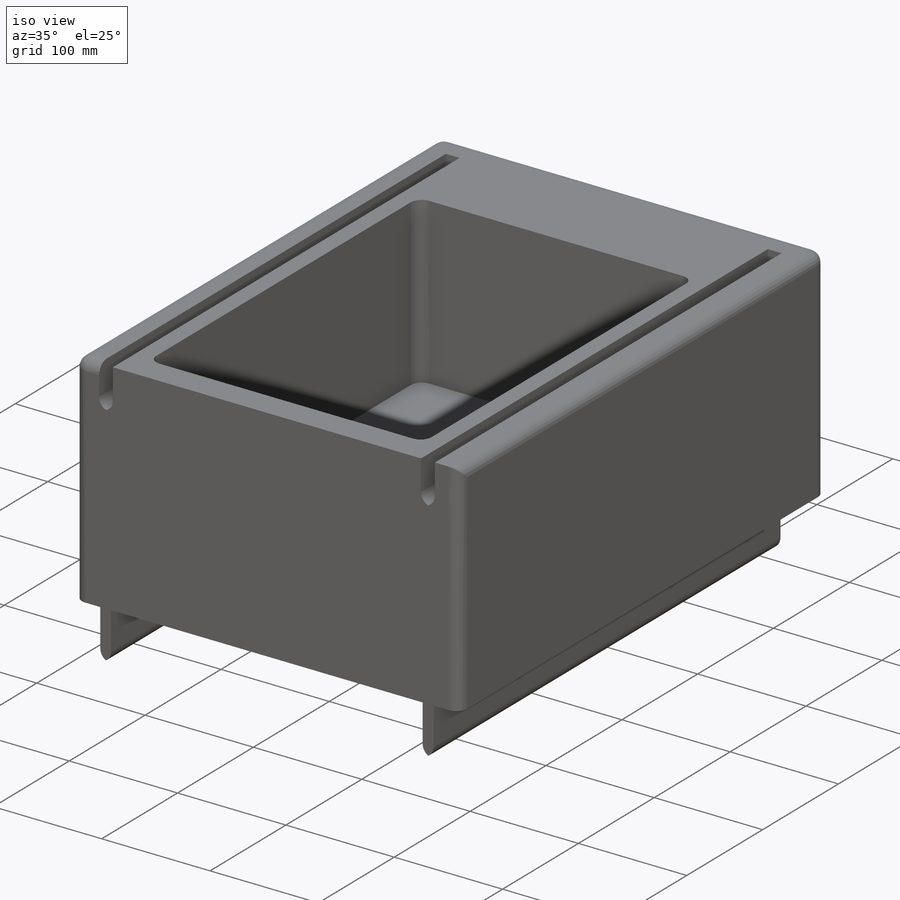
[diagram: iso view]
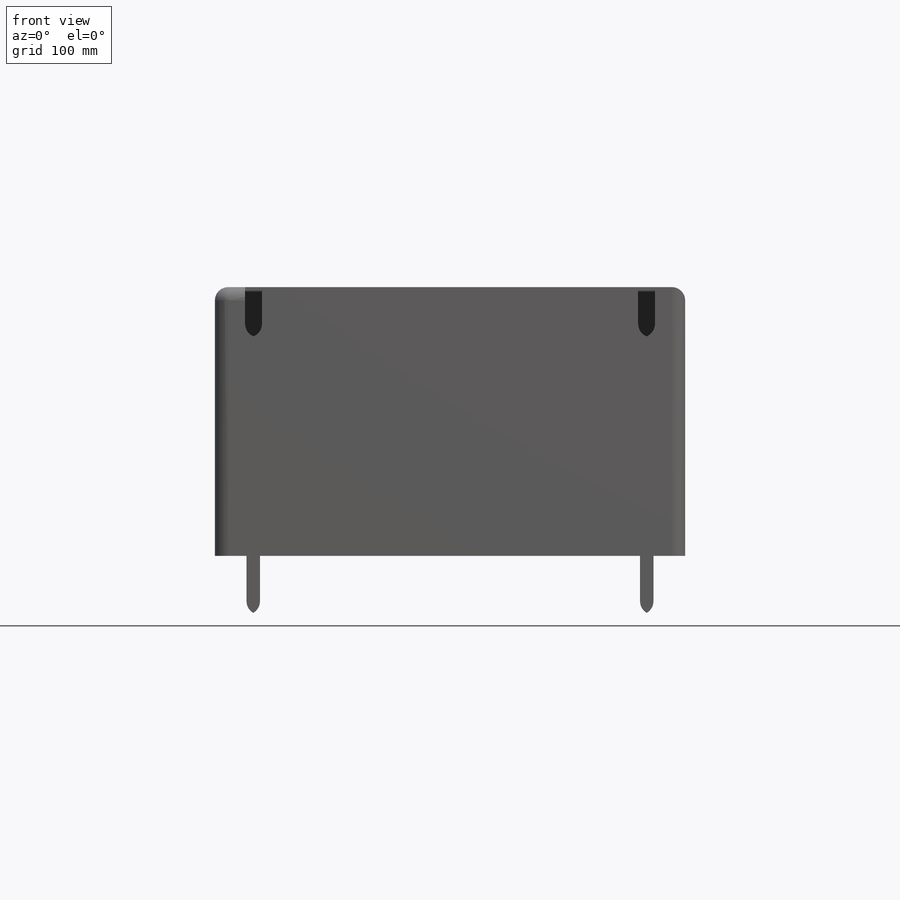
[diagram: front view]
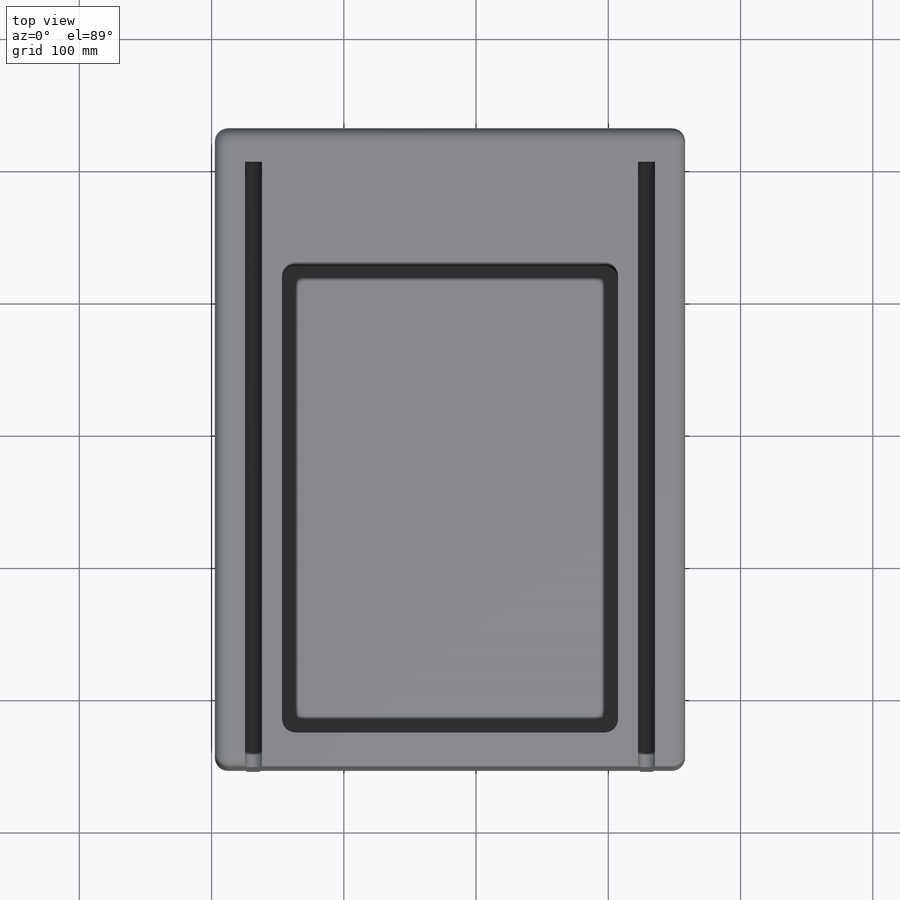
[diagram: top view]
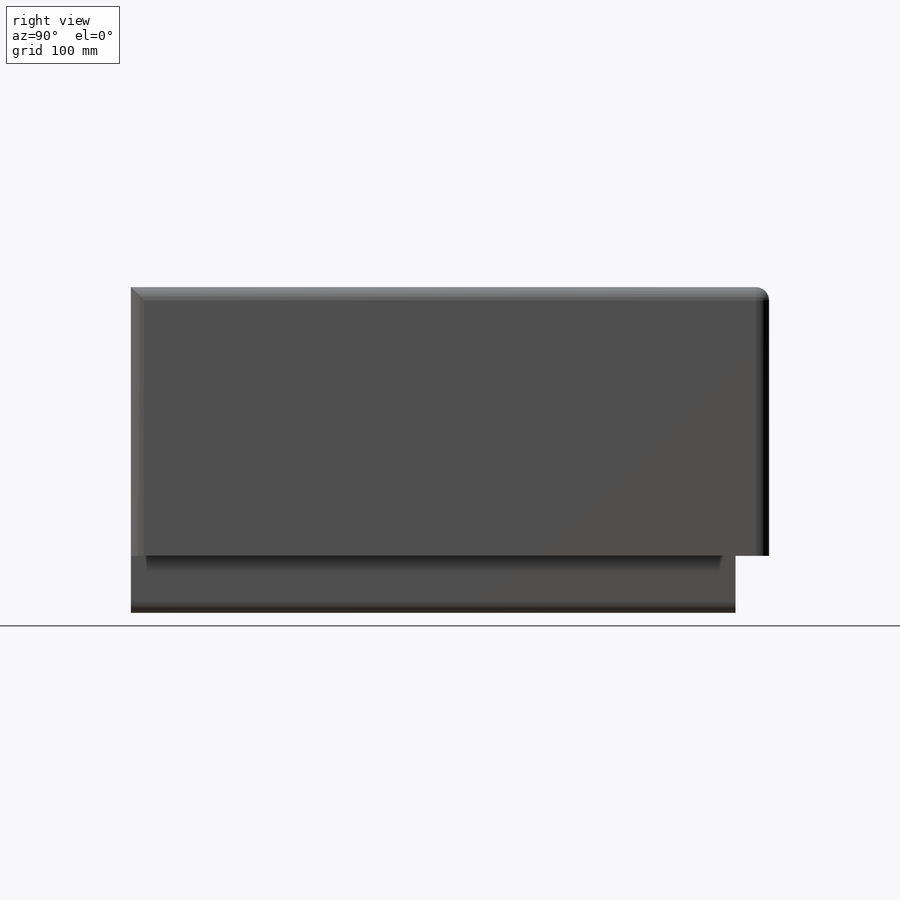
[diagram: right view]
SOLIDWORKS PART (.sldprt)
format: sldprt  version: not decoded by parser v0  size: 353,792 bytes
history: native  units: mm
features: fillet x6, sketch x5, cut_extrude x3, extrude x2, material x1 (+12 scaffold rows collapsed)
feature tree (29):
  scaffold x12  (default folders/planes/origin — collapsed)
  material  "Material <not specified>"
  sketch  "Sketch1"  dims[D1=254.0mm D2=355.6mm D3=50.8mm D4=101.6mm D5=25.4mm D6=50.8mm D7=12.7mm D8=12.7mm D9=22.86mm D10=22.86mm D11=0.0mm D12=0.0mm D13=25.4mm D14=25.4mm D15=25.4mm]
  extrude  "Boss-Extrude2"  Depth=203.2mm
  cut_extrude  "Cut-Extrude2"  [1 undecoded]
  sketch  "Sketch1<5>"  dims[D1=152.4mm]
  cut_extrude  "Cut-Extrude3"  [1 undecoded]
  sketch  "Sketch1<6>"  dims[D1=38.1mm]
  fillet  "Fillet1"  Radius=10mm
  fillet  "Fillet6"  Radius=10mm
  fillet  "Fillet7"  Radius=10mm
  sketch  "Sketch5"  dims[c1.D1=22.68mm c1.D2=22.86mm c2.D1=10.16mm c2.D2=10.16mm c2.D3=23.95mm c2.D4=23.95mm c2.D5=0.0mm c2.D6=0.0mm c2.D7=25.4mm c2.D8=25.4mm]
  extrude  "Boss-Extrude3"  Depth=44.45mm
  fillet  "Fillet8"  Radius=10mm
  sketch  "Sketch6"  dims[D1=38.1mm D2=12.7mm D3=14.03mm D4=14.03mm]
  cut_extrude  "Cut-Extrude4"  Depth=38.1mm
  fillet  "Fillet10"  Radius=10mm
  fillet  "Fillet3"  Radius=10mm
decode coverage: 14 of 16 modeling features carry decoded parameters
note: 2 parameter values undecoded
note: suppression state not decoded; provenance and decode notes live in map.json
